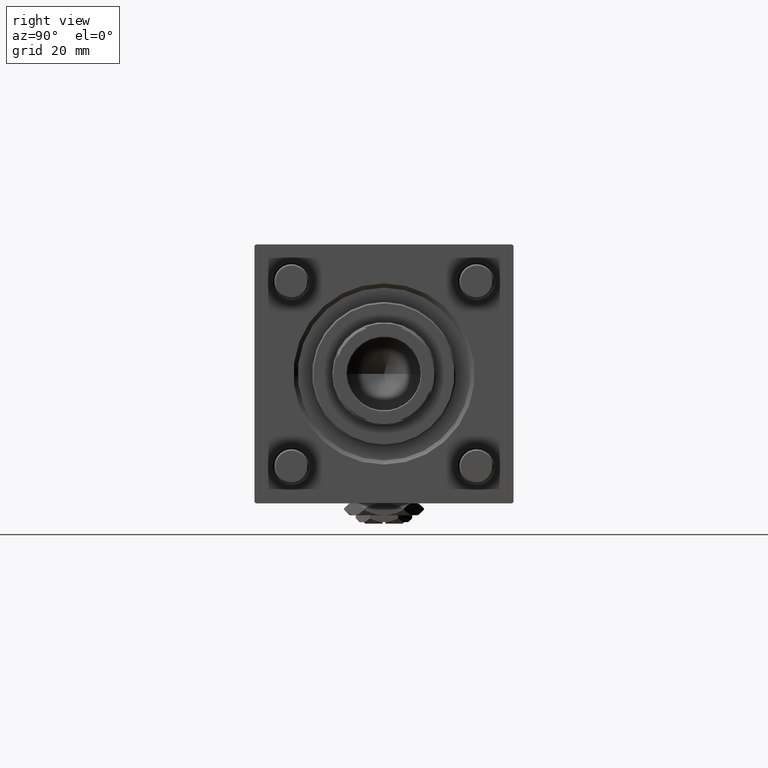
[diagram: clean part render]
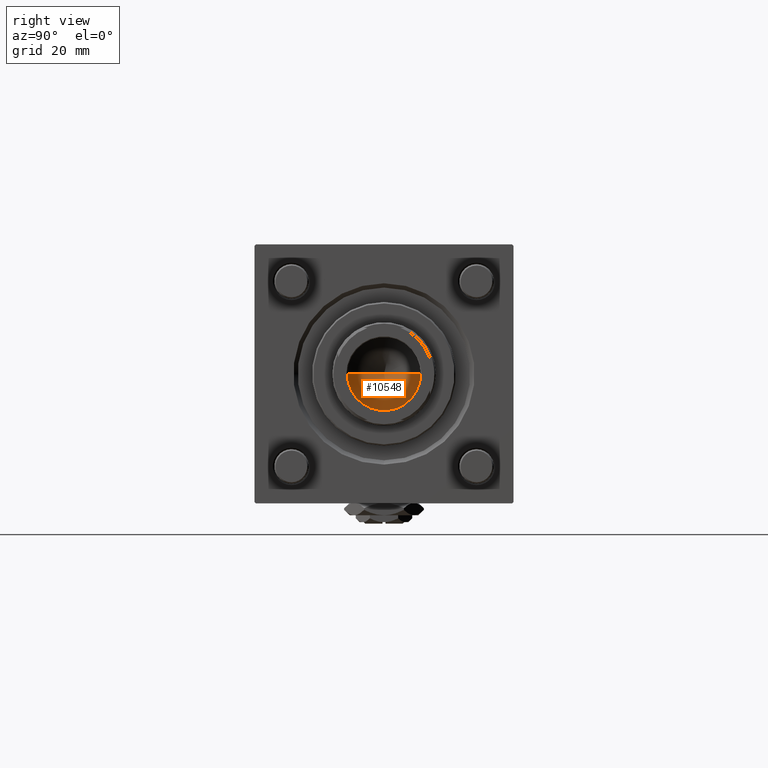
[diagram: same view with one face highlighted and labeled with its STEP entity id]
A machine part, right view. The second image highlights one B-rep face of the part: STEP entity #10548.
In plain terms, the highlighted conical surface has half-angle 59 deg.
Its self-contained STEP definition (entity closure, byte-faithful):
#9155 = DIRECTION ( 'NONE',  ( -0.000000000000000000, -0.000000000000000000, 1.000000000000000000 ) ) ;
#10548 = ADVANCED_FACE ( 'NONE', ( #33243 ), #50322, .F. ) ;
#10698 = EDGE_CURVE ( 'NONE', #23279, #54532, #28174, .T. ) ;
#13700 = CARTESIAN_POINT ( 'NONE',  ( -12.74999999999998934, 1.561424668912873928E-15, 105.0000000000000284 ) ) ;
#14369 = DIRECTION ( 'NONE',  ( 0.8571673007021117785, 0.000000000000000000, 0.5150380749100550437 ) ) ;
#19500 = VERTEX_POINT ( 'NONE', #48394 ) ;
#22020 = VECTOR ( 'NONE', #46189, 1000.000000000000000 ) ;
#22929 = EDGE_CURVE ( 'NONE', #23279, #19500, #46548, .T. ) ;
#23279 = VERTEX_POINT ( 'NONE', #44728 ) ;
#23926 = ORIENTED_EDGE ( 'NONE', *, *, #22929, .T. ) ;
#28174 = LINE ( 'NONE', #13700, #22020 ) ;
#28831 = CARTESIAN_POINT ( 'NONE',  ( 12.74999999999998934, 0.000000000000000000, 105.0000000000000284 ) ) ;
#29391 = CARTESIAN_POINT ( 'NONE',  ( 0.000000000000000000, 0.000000000000000000, 105.0000000000000284 ) ) ;
#32341 = ORIENTED_EDGE ( 'NONE', *, *, #10698, .F. ) ;
#33243 = FACE_OUTER_BOUND ( 'NONE', #40101, .T. ) ;
#34201 = EDGE_CURVE ( 'NONE', #19500, #54532, #36195, .T. ) ;
#36195 = CIRCLE ( 'NONE', #48455, 12.74999999999998934 ) ;
#38310 = VECTOR ( 'NONE', #14369, 1000.000000000000000 ) ;
#38531 = DIRECTION ( 'NONE',  ( 1.000000000000000000, 0.000000000000000000, 0.000000000000000000 ) ) ;
#39929 = AXIS2_PLACEMENT_3D ( 'NONE', #29391, #55679, #38531 ) ;
#40101 = EDGE_LOOP ( 'NONE', ( #32341, #23926, #47780 ) ) ;
#40775 = DIRECTION ( 'NONE',  ( 1.000000000000000000, 0.000000000000000000, 0.000000000000000000 ) ) ;
#42373 = CARTESIAN_POINT ( 'NONE',  ( -12.74999999999998934, 1.561424668912873928E-15, 105.0000000000000284 ) ) ;
#44728 = CARTESIAN_POINT ( 'NONE',  ( -1.410643066818227497E-14, 0.000000000000000000, 97.33902710739862130 ) ) ;
#46189 = DIRECTION ( 'NONE',  ( -0.8571673007021117785, 1.049727191138617956E-16, 0.5150380749100550437 ) ) ;
#46548 = LINE ( 'NONE', #28831, #38310 ) ;
#47780 = ORIENTED_EDGE ( 'NONE', *, *, #34201, .T. ) ;
#48394 = CARTESIAN_POINT ( 'NONE',  ( 12.74999999999998934, 0.000000000000000000, 105.0000000000000284 ) ) ;
#48455 = AXIS2_PLACEMENT_3D ( 'NONE', #54059, #9155, #40775 ) ;
#50322 = CONICAL_SURFACE ( 'NONE', #39929, 12.74999999999998934, 1.029744258676653423 ) ;
#54059 = CARTESIAN_POINT ( 'NONE',  ( 0.000000000000000000, 0.000000000000000000, 105.0000000000000284 ) ) ;
#54532 = VERTEX_POINT ( 'NONE', #42373 ) ;
#55679 = DIRECTION ( 'NONE',  ( -0.000000000000000000, -0.000000000000000000, 1.000000000000000000 ) ) ;